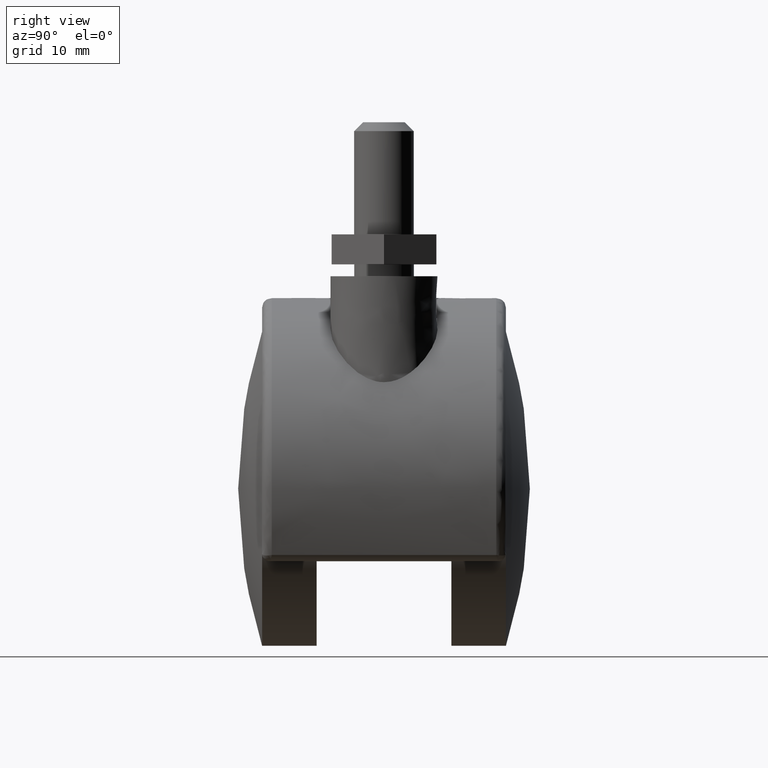
[diagram: clean part render]
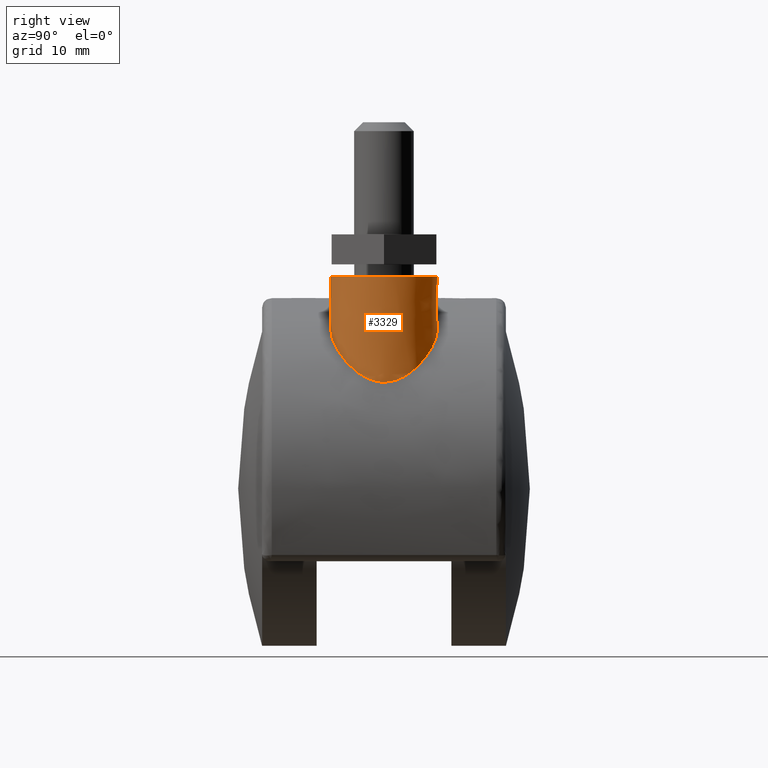
[diagram: same view with one face highlighted and labeled with its STEP entity id]
A machine part, right view. The second image highlights one B-rep face of the part: STEP entity #3329.
In plain terms, the highlighted face is a freeform B-spline surface patch.
Its self-contained STEP definition (entity closure, byte-faithful):
#3153=CARTESIAN_POINT('',(12.508713685896483,6.992751325087095,28.753866923734563));
#3154=CARTESIAN_POINT('',(13.338751162601810,7.169766324131608,28.753866923734563));
#3155=CARTESIAN_POINT('',(14.187163180401390,7.147549873575152,28.753866923734570));
#3156=CARTESIAN_POINT('',(21.334713053976543,6.960384693173862,28.753866923734570));
#3157=CARTESIAN_POINT('',(21.147547873575249,-0.187165180401291,28.753866923734570));
#3158=CARTESIAN_POINT('',(20.960382693173962,-7.334715053976443,28.753866923734570));
#3159=CARTESIAN_POINT('',(13.812832819598810,-7.147549873575152,28.753866923734570));
#3160=CARTESIAN_POINT('',(12.508713685896483,6.992751325087095,13.882609453789495));
#3161=CARTESIAN_POINT('',(13.338751162601810,7.169766324131608,13.882609453789495));
#3162=CARTESIAN_POINT('',(14.187163180401390,7.147549873575152,13.882609453789501));
#3163=CARTESIAN_POINT('',(21.334713053976543,6.960384693173862,13.882609453789495));
#3164=CARTESIAN_POINT('',(21.147547873575249,-0.187165180401291,13.882609453789501));
#3165=CARTESIAN_POINT('',(20.960382693173962,-7.334715053976443,13.882609453789495));
#3166=CARTESIAN_POINT('',(13.812832819598810,-7.147549873575152,13.882609453789501));
#3174=(BOUNDED_SURFACE()B_SPLINE_SURFACE(2,1,((#3153,#3160),(#3154,#3161),(#3155,#3162),(#3156,#3163),(#3157,#3164),(#3158,#3165),(#3159,#3166)),.UNSPECIFIED.,.F.,.F.,.U.)B_SPLINE_SURFACE_WITH_KNOTS((3,2,2,3),(2,2),(0.0,1.895441261419261,13.741949145289651,25.588457029160029),(0.0,14.871257469945080),.UNSPECIFIED.)GEOMETRIC_REPRESENTATION_ITEM()RATIONAL_B_SPLINE_SURFACE(((0.921270302782944,0.921270302782944),(0.953137084989848,0.953137084989848),(1.0,1.0),(0.707106781186548,0.707106781186548),(1.0,1.0),(0.707106781186548,0.707106781186548),(1.0,1.0)))REPRESENTATION_ITEM('')SURFACE());
#3175=CARTESIAN_POINT('',(21.149960335271292,0.023207847857796,14.245323050617420));
#3176=VERTEX_POINT('',#3175);
#3177=CARTESIAN_POINT('',(12.508705340197031,6.992790438002766,22.221218547594781));
#3178=VERTEX_POINT('',#3177);
#3179=CARTESIAN_POINT('',(21.149960335271292,0.023207847857796,14.245323050617420));
#3180=CARTESIAN_POINT('',(21.149104123599361,0.287017959440957,14.246594386915740));
#3181=CARTESIAN_POINT('',(21.133698959672600,0.549050888198194,14.269534633982611));
#3182=CARTESIAN_POINT('',(21.089211927941719,0.939525876007728,14.335128307315779));
#3183=CARTESIAN_POINT('',(21.070690764501499,1.069806224050145,14.362364916984330));
#3184=CARTESIAN_POINT('',(21.027443096369439,1.324460703180360,14.425608378138021));
#3185=CARTESIAN_POINT('',(21.002689919832591,1.449352957028371,14.461654668765400));
#3186=CARTESIAN_POINT('',(20.919732758599501,1.817426730366610,14.581643317118880));
#3187=CARTESIAN_POINT('',(20.852875688533299,2.054038066967454,14.677377513520319));
#3188=CARTESIAN_POINT('',(20.756320717246510,2.340566417047053,14.813046786252970));
#3189=CARTESIAN_POINT('',(20.736356914880350,2.397407638602883,14.840985397918070));
#3190=CARTESIAN_POINT('',(20.695146705689201,2.510194541060173,14.898397611115850));
#3191=CARTESIAN_POINT('',(20.673873197619660,2.566203350830488,14.927908246822160));
#3192=CARTESIAN_POINT('',(20.608590380307650,2.731864134707391,15.018042921379090));
#3193=CARTESIAN_POINT('',(20.563010159716669,2.839481665966098,15.080421698231930));
#3194=CARTESIAN_POINT('',(20.420506791415399,3.154798606661319,15.273460869621470));
#3195=CARTESIAN_POINT('',(20.317848651878659,3.355010209136695,15.409979764448870));
#3196=CARTESIAN_POINT('',(20.098531802754550,3.738877061145479,15.694950814301990));
#3197=CARTESIAN_POINT('',(19.981861770756339,3.922511534081215,15.843422774461621));
#3198=CARTESIAN_POINT('',(19.796738384147670,4.187101528070159,16.073237829322089));
#3199=CARTESIAN_POINT('',(19.733339196223721,4.273479519967912,16.151035027317921));
#3200=CARTESIAN_POINT('',(19.603171668132990,4.442776583795710,16.308779059509671));
#3201=CARTESIAN_POINT('',(19.536585136101170,4.525447677935953,16.388502251425621));
#3202=CARTESIAN_POINT('',(19.333335273768071,4.766776194127711,16.628780317539711));
#3203=CARTESIAN_POINT('',(19.192811289484290,4.919273903724057,16.790891451464312));
#3204=CARTESIAN_POINT('',(18.756414271236640,5.354210762477464,17.281162653516901));
#3205=CARTESIAN_POINT('',(18.445820080311229,5.614349172920956,17.613155473527570));
#3206=CARTESIAN_POINT('',(17.949150521651710,5.963846187098417,18.114456610913500));
#3207=CARTESIAN_POINT('',(17.778436853547522,6.073487707017863,18.282140617145881));
#3208=CARTESIAN_POINT('',(17.514221240760410,6.227590279882850,18.534214103440160));
#3209=CARTESIAN_POINT('',(17.424672574281839,6.277288886778310,18.618439703697891));
#3210=CARTESIAN_POINT('',(17.243302609996480,6.372888842022149,18.786538535180771));
#3211=CARTESIAN_POINT('',(17.151726582158311,6.418667761196316,18.870187685929629));
#3212=CARTESIAN_POINT('',(16.689353136507620,6.637547683521904,19.286352636631349));
#3213=CARTESIAN_POINT('',(16.305132332295269,6.780876788012546,19.612600711612711));
#3214=CARTESIAN_POINT('',(15.506187052963940,7.001804725507280,20.250175788375309));
#3215=CARTESIAN_POINT('',(15.091484702397990,7.079457336377649,20.561511461662668));
#3216=CARTESIAN_POINT('',(14.551817653420439,7.129465285186949,20.940684382472231));
#3217=CARTESIAN_POINT('',(14.442565807701641,7.137101523549014,21.016187684264981));
#3218=CARTESIAN_POINT('',(14.223161629736460,7.147326015887174,21.165290595421581));
#3219=CARTESIAN_POINT('',(14.113132993113290,7.149921713757729,21.238812829275229));
#3220=CARTESIAN_POINT('',(13.782098536737241,7.150049585781403,21.456321958818510));
#3221=CARTESIAN_POINT('',(13.560143044688759,7.139938269820852,21.597252480995159));
#3222=CARTESIAN_POINT('',(13.062614934028341,7.093603598126934,21.902556975475338));
#3223=CARTESIAN_POINT('',(12.786430226415741,7.052050041223169,22.064882508181999));
#3224=CARTESIAN_POINT('',(12.508705340197031,6.992790438002766,22.221218547594781));
#3225=B_SPLINE_CURVE_WITH_KNOTS('',3,(#3179,#3180,#3181,#3182,#3183,#3184,#3185,#3186,#3187,#3188,#3189,#3190,#3191,#3192,#3193,#3194,#3195,#3196,#3197,#3198,#3199,#3200,#3201,#3202,#3203,#3204,#3205,#3206,#3207,#3208,#3209,#3210,#3211,#3212,#3213,#3214,#3215,#3216,#3217,#3218,#3219,#3220,#3221,#3222,#3223,#3224),.UNSPECIFIED.,.F.,.U.,(4,2,2,2,2,2,2,2,2,2,2,2,2,2,2,2,2,2,2,2,2,2,4),(0.500000000000005,0.515625000000005,0.523437500000005,0.531250000000005,0.546875000000005,0.550781250000005,0.554687500000005,0.562500000000004,0.578125000000004,0.593750000000004,0.601562500000004,0.609375000000004,0.625000000000004,0.656250000000003,0.671875000000003,0.679687500000003,0.687500000000003,0.718750000000002,0.750000000000002,0.757812500000002,0.765625000000002,0.781250000000002,0.800465667727664),.UNSPECIFIED.);
#3226=EDGE_CURVE('',#3176,#3178,#3225,.T.);
#3227=ORIENTED_EDGE('',*,*,#3226,.T.);
#3228=CARTESIAN_POINT('',(12.508723450668640,6.992753407522348,28.399999999999999));
#3229=VERTEX_POINT('',#3228);
#3230=CARTESIAN_POINT('',(12.508723450668640,6.992753407522348,28.399999999999999));
#3231=CARTESIAN_POINT('',(12.508705340197031,6.992790438002766,22.221218547594781));
#3232=QUASI_UNIFORM_CURVE('',1,(#3230,#3231),.UNSPECIFIED.,.F.,.U.);
#3233=EDGE_CURVE('',#3229,#3178,#3232,.T.);
#3234=ORIENTED_EDGE('',*,*,#3233,.F.);
#3235=CARTESIAN_POINT('',(21.149998000000021,0.0,28.399999999999999));
#3236=VERTEX_POINT('',#3235);
#3237=CARTESIAN_POINT('',(12.508723450668635,6.992753407522348,28.400000000000006));
#3238=CARTESIAN_POINT('',(13.246070336801656,7.149999999999920,28.400000000000006));
#3239=CARTESIAN_POINT('',(13.999998000000099,7.149999999999920,28.399999999999999));
#3240=CARTESIAN_POINT('',(21.149998000000028,7.149999999999920,28.399999999999999));
#3241=CARTESIAN_POINT('',(21.149998000000021,0.0,28.399999999999999));
#3249=(BOUNDED_CURVE()B_SPLINE_CURVE(2,(#3237,#3238,#3239,#3240,#3241),.UNSPECIFIED.,.F.,.U.)B_SPLINE_CURVE_WITH_KNOTS((3,2,3),(0.214279894443844,0.250000000000000,0.500000000000000),.UNSPECIFIED.)CURVE()GEOMETRIC_REPRESENTATION_ITEM()RATIONAL_B_SPLINE_CURVE((0.928261308244341,0.958151293229205,1.0,0.707106781186548,1.0))REPRESENTATION_ITEM(''));
#3250=EDGE_CURVE('',#3229,#3236,#3249,.T.);
#3251=ORIENTED_EDGE('',*,*,#3250,.T.);
#3252=CARTESIAN_POINT('',(13.812832819536890,-7.147549873573532,28.399999999999999));
#3253=VERTEX_POINT('',#3252);
#3254=CARTESIAN_POINT('',(21.149998000000021,0.0,28.399999999999999));
#3255=CARTESIAN_POINT('',(21.149998000000028,-7.149999999999920,28.399999999999999));
#3256=CARTESIAN_POINT('',(13.999998000000099,-7.149999999999920,28.399999999999999));
#3257=CARTESIAN_POINT('',(13.906399372781557,-7.149999999999921,28.400000000000002));
#3258=CARTESIAN_POINT('',(13.812832819536883,-7.147549873573532,28.400000000000002));
#3266=(BOUNDED_CURVE()B_SPLINE_CURVE(2,(#3254,#3255,#3256,#3257,#3258),.UNSPECIFIED.,.F.,.U.)B_SPLINE_CURVE_WITH_KNOTS((3,2,3),(0.500000000000000,0.750000000000000,0.754603306662036),.UNSPECIFIED.)CURVE()GEOMETRIC_REPRESENTATION_ITEM()RATIONAL_B_SPLINE_CURVE((1.0,0.707106781186548,1.0,0.994606890778284,0.989412390641443))REPRESENTATION_ITEM(''));
#3267=EDGE_CURVE('',#3236,#3253,#3266,.T.);
#3268=ORIENTED_EDGE('',*,*,#3267,.T.);
#3269=CARTESIAN_POINT('',(13.812833964466209,-7.147551247231823,21.434912303470359));
#3270=VERTEX_POINT('',#3269);
#3271=CARTESIAN_POINT('',(13.812832819536890,-7.147549873573532,28.399999999999999));
#3272=CARTESIAN_POINT('',(13.812833964466209,-7.147551247231823,21.434912303470359));
#3273=QUASI_UNIFORM_CURVE('',1,(#3271,#3272),.UNSPECIFIED.,.F.,.U.);
#3274=EDGE_CURVE('',#3253,#3270,#3273,.T.);
#3275=ORIENTED_EDGE('',*,*,#3274,.T.);
#3276=CARTESIAN_POINT('',(13.812833964466209,-7.147551247231823,21.434912303470359));
#3277=CARTESIAN_POINT('',(13.879564093735871,-7.149297579565451,21.391910844670800));
#3278=CARTESIAN_POINT('',(13.946206889438679,-7.150106024011182,21.348524634424940));
#3279=CARTESIAN_POINT('',(14.123819883928849,-7.149788986288479,21.231703429481421));
#3280=CARTESIAN_POINT('',(14.234220950664360,-7.147000091444477,21.157842623579430));
#3281=CARTESIAN_POINT('',(14.452975349418161,-7.136475440226098,21.009018487599569));
#3282=CARTESIAN_POINT('',(14.561450618407390,-7.128739635039132,20.933975109384829));
#3283=CARTESIAN_POINT('',(15.099425353800431,-7.078177751451846,20.555633221909499));
#3284=CARTESIAN_POINT('',(15.515769855696419,-7.000010579780258,20.242954655599600));
#3285=CARTESIAN_POINT('',(16.019834294433760,-6.859569287461570,19.840147334097210));
#3286=CARTESIAN_POINT('',(16.119825911033001,-6.829325873703750,19.758988279724189));
#3287=CARTESIAN_POINT('',(16.318184935374308,-6.764567363835942,19.595490550813729));
#3288=CARTESIAN_POINT('',(16.416683892080300,-6.729997418624371,19.513037218637120));
#3289=CARTESIAN_POINT('',(16.707989590281478,-6.620596162026386,19.265459758931701));
#3290=CARTESIAN_POINT('',(16.897072412151129,-6.539964655266468,19.099749721097119));
#3291=CARTESIAN_POINT('',(17.449882513565161,-6.275952195246130,18.601018419383578));
#3292=CARTESIAN_POINT('',(17.799249343443059,-6.070684772791431,18.266335789204160));
#3293=CARTESIAN_POINT('',(18.296642839735618,-5.718617407743678,17.763400380792330));
#3294=CARTESIAN_POINT('',(18.457977941786488,-5.593845342704544,17.595616281043810));
#3295=CARTESIAN_POINT('',(18.693365095069979,-5.394936495276742,17.344198766712310));
#3296=CARTESIAN_POINT('',(18.770758982048392,-5.326626396655107,17.260394494019270));
#3297=CARTESIAN_POINT('',(18.922339005083639,-5.186874663339273,17.094083827122969));
#3298=CARTESIAN_POINT('',(18.996653958208761,-5.115328687257700,17.011441475840460));
#3299=CARTESIAN_POINT('',(19.215233351320059,-4.895559690687046,16.765230355410701));
#3300=CARTESIAN_POINT('',(19.355143172792140,-4.742227996329230,16.603363129780121));
#3301=CARTESIAN_POINT('',(19.623415199778449,-4.420801581198323,16.285417373659740));
#3302=CARTESIAN_POINT('',(19.751780881348729,-4.252717046968743,16.129331071241289));
#3303=CARTESIAN_POINT('',(19.996653000338249,-3.899838319071729,15.824728941624260));
#3304=CARTESIAN_POINT('',(20.113167431783801,-3.715064595770151,15.676198344696250));
#3305=CARTESIAN_POINT('',(20.278400458949061,-3.422961755356366,15.461068921712300));
#3306=CARTESIAN_POINT('',(20.331888365813501,-3.323043044081778,15.390633686535709));
#3307=CARTESIAN_POINT('',(20.434469484185239,-3.119780148480052,15.254171585501730));
#3308=CARTESIAN_POINT('',(20.483700946347700,-3.016202307962312,15.187966017790901));
#3309=CARTESIAN_POINT('',(20.625001778220579,-2.699142570350777,14.996150954235439));
#3310=CARTESIAN_POINT('',(20.710722227123512,-2.479389803032653,14.877275338807850));
#3311=CARTESIAN_POINT('',(20.825055160489661,-2.134423754247178,14.716366123186191));
#3312=CARTESIAN_POINT('',(20.860781610869779,-2.016866608505639,14.665645513022660));
#3313=CARTESIAN_POINT('',(20.927051904862228,-1.775958211356669,14.570925498410590));
#3314=CARTESIAN_POINT('',(20.957223990618839,-1.653933438371559,14.527458981266340));
#3315=CARTESIAN_POINT('',(21.038428962281259,-1.283338656747133,14.409844648925841));
#3316=CARTESIAN_POINT('',(21.080258645130758,-1.030063171049270,14.348353969809700));
#3317=CARTESIAN_POINT('',(21.115505334819279,-0.704516193804174,14.296350451674581));
#3318=CARTESIAN_POINT('',(21.121698619785398,-0.638957585119462,14.287196431736890));
#3319=CARTESIAN_POINT('',(21.132314146520169,-0.506905460789576,14.271490274641060));
#3320=CARTESIAN_POINT('',(21.136740784300510,-0.440253353493311,14.264931627989769));
#3321=CARTESIAN_POINT('',(21.147170945291549,-0.241047237913219,14.249468911759310));
#3322=CARTESIAN_POINT('',(21.150388469521541,-0.108697393824813,14.244687361898110));
#3323=CARTESIAN_POINT('',(21.149960335271292,0.023207847857796,14.245323050617420));
#3324=B_SPLINE_CURVE_WITH_KNOTS('',3,(#3276,#3277,#3278,#3279,#3280,#3281,#3282,#3283,#3284,#3285,#3286,#3287,#3288,#3289,#3290,#3291,#3292,#3293,#3294,#3295,#3296,#3297,#3298,#3299,#3300,#3301,#3302,#3303,#3304,#3305,#3306,#3307,#3308,#3309,#3310,#3311,#3312,#3313,#3314,#3315,#3316,#3317,#3318,#3319,#3320,#3321,#3322,#3323),.UNSPECIFIED.,.F.,.U.,(4,2,2,2,2,2,2,2,2,2,2,2,2,2,2,2,2,2,2,2,2,2,2,4),(0.229693405197819,0.234375000000005,0.242187500000005,0.250000000000005,0.281250000000006,0.289062500000006,0.296875000000006,0.312500000000006,0.343750000000006,0.359375000000006,0.367187500000006,0.375000000000006,0.390625000000006,0.406250000000006,0.421875000000006,0.429687500000006,0.437500000000006,0.453125000000006,0.460937500000006,0.468750000000006,0.484375000000006,0.488281250000005,0.492187500000005,0.500000000000005),.UNSPECIFIED.);
#3325=EDGE_CURVE('',#3270,#3176,#3324,.T.);
#3326=ORIENTED_EDGE('',*,*,#3325,.T.);
#3327=EDGE_LOOP('',(#3227,#3234,#3251,#3268,#3275,#3326));
#3328=FACE_OUTER_BOUND('',#3327,.T.);
#3329=ADVANCED_FACE('',(#3328),#3174,.T.);